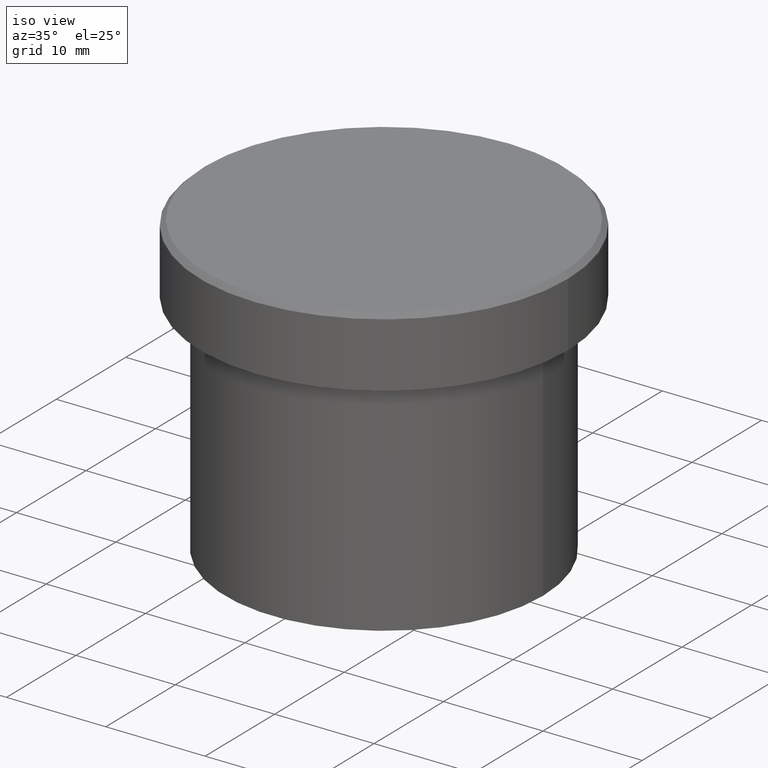
[diagram: clean part render]
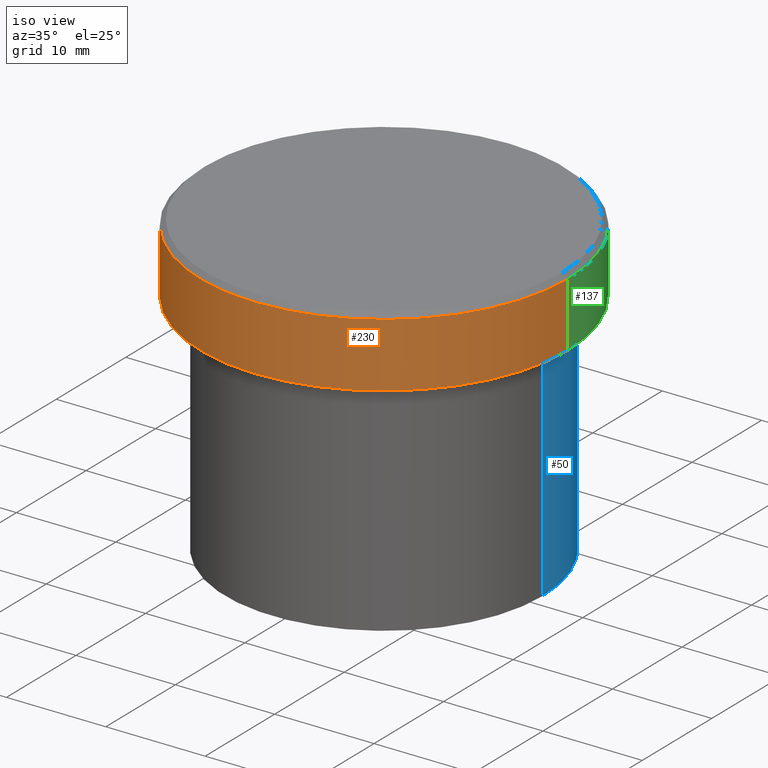
[diagram: same view with three faces highlighted in distinct colors, each labeled with its STEP entity id]
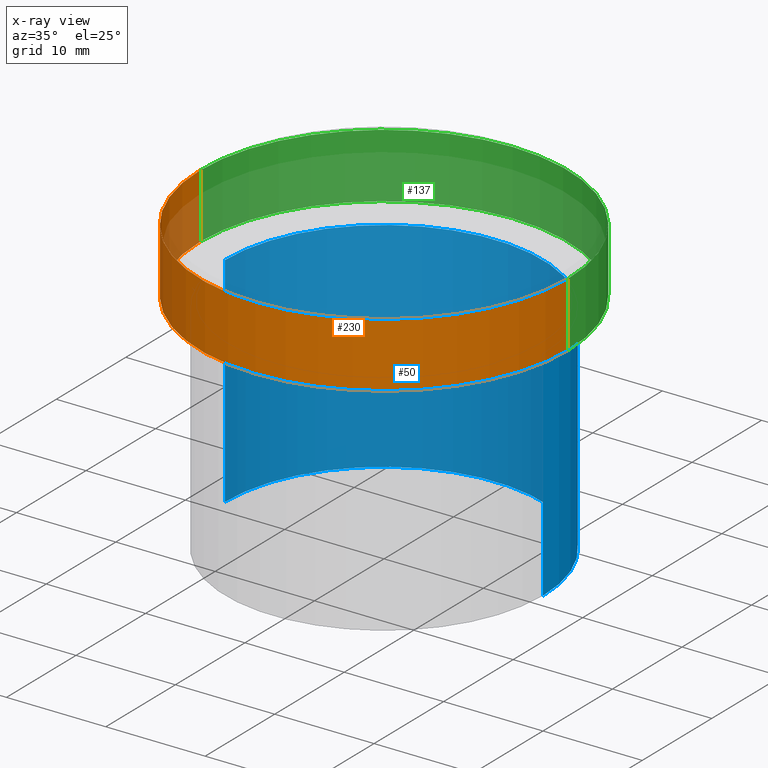
[diagram: x-ray of the same camera — body ghosted, the three highlighted faces saturated]
A machine part, iso view with three faces highlighted in distinct colors.
The next image is the same camera in x-ray (body ghosted, the three faces saturated) — at least one of them is partly hidden behind the body in this view.
Their STEP definitions:

[orange] entity #230 — the highlighted cylindrical surface (partial cylindrical patch) has radius 18.5 mm, axis along (-0, -0, 1).
#14 = DIRECTION ( 'NONE',  ( 0.000000000000000000, 0.000000000000000000, -1.000000000000000000 ) ) ;
#29 = CYLINDRICAL_SURFACE ( 'NONE', #398, 18.50000000000000000 ) ;
#36 = DIRECTION ( 'NONE',  ( -0.000000000000000000, -0.000000000000000000, 1.000000000000000000 ) ) ;
#42 = CARTESIAN_POINT ( 'NONE',  ( -18.50000000000000000, 2.265596578422603396E-15, 0.000000000000000000 ) ) ;
#44 = CARTESIAN_POINT ( 'NONE',  ( 18.50000000000000000, 0.000000000000000000, -6.999999999999999112 ) ) ;
#48 = ORIENTED_EDGE ( 'NONE', *, *, #146, .F. ) ;
#69 = CARTESIAN_POINT ( 'NONE',  ( 0.000000000000000000, 0.000000000000000000, -6.999999999999999112 ) ) ;
#75 = VECTOR ( 'NONE', #235, 1000.000000000000000 ) ;
#91 = VERTEX_POINT ( 'NONE', #112 ) ;
#107 = ORIENTED_EDGE ( 'NONE', *, *, #298, .T. ) ;
#112 = CARTESIAN_POINT ( 'NONE',  ( 18.50000000000000000, 0.000000000000000000, -0.5000000000000004441 ) ) ;
#114 = VERTEX_POINT ( 'NONE', #44 ) ;
#118 = CIRCLE ( 'NONE', #348, 18.50000000000000000 ) ;
#123 = ORIENTED_EDGE ( 'NONE', *, *, #342, .T. ) ;
#141 = VECTOR ( 'NONE', #367, 1000.000000000000000 ) ;
#144 = ORIENTED_EDGE ( 'NONE', *, *, #147, .T. ) ;
#146 = EDGE_CURVE ( 'NONE', #345, #409, #250, .T. ) ;
#147 = EDGE_CURVE ( 'NONE', #91, #409, #118, .T. ) ;
#209 = CARTESIAN_POINT ( 'NONE',  ( -18.50000000000000000, 2.265596578422603396E-15, -0.5000000000000004441 ) ) ;
#228 = EDGE_LOOP ( 'NONE', ( #48, #107, #123, #144 ) ) ;
#230 = ADVANCED_FACE ( 'NONE', ( #295 ), #29, .T. ) ;
#235 = DIRECTION ( 'NONE',  ( -0.000000000000000000, -0.000000000000000000, 1.000000000000000000 ) ) ;
#238 = DIRECTION ( 'NONE',  ( 1.000000000000000000, 0.000000000000000000, 0.000000000000000000 ) ) ;
#247 = CARTESIAN_POINT ( 'NONE',  ( 18.50000000000000000, 0.000000000000000000, 0.000000000000000000 ) ) ;
#250 = LINE ( 'NONE', #42, #141 ) ;
#293 = AXIS2_PLACEMENT_3D ( 'NONE', #69, #36, #303 ) ;
#295 = FACE_OUTER_BOUND ( 'NONE', #228, .T. ) ;
#297 = DIRECTION ( 'NONE',  ( -0.000000000000000000, -0.000000000000000000, 1.000000000000000000 ) ) ;
#298 = EDGE_CURVE ( 'NONE', #345, #114, #312, .T. ) ;
#303 = DIRECTION ( 'NONE',  ( 1.000000000000000000, 0.000000000000000000, 0.000000000000000000 ) ) ;
#307 = CARTESIAN_POINT ( 'NONE',  ( -18.50000000000000000, 2.265596578422603396E-15, -6.999999999999999112 ) ) ;
#312 = CIRCLE ( 'NONE', #293, 18.50000000000000000 ) ;
#327 = LINE ( 'NONE', #247, #75 ) ;
#334 = CARTESIAN_POINT ( 'NONE',  ( 0.000000000000000000, 0.000000000000000000, -0.5000000000000004441 ) ) ;
#342 = EDGE_CURVE ( 'NONE', #114, #91, #327, .T. ) ;
#345 = VERTEX_POINT ( 'NONE', #307 ) ;
#348 = AXIS2_PLACEMENT_3D ( 'NONE', #334, #14, #350 ) ;
#350 = DIRECTION ( 'NONE',  ( 1.000000000000000000, 0.000000000000000000, 0.000000000000000000 ) ) ;
#359 = CARTESIAN_POINT ( 'NONE',  ( 0.000000000000000000, 0.000000000000000000, 0.000000000000000000 ) ) ;
#367 = DIRECTION ( 'NONE',  ( -0.000000000000000000, -0.000000000000000000, 1.000000000000000000 ) ) ;
#398 = AXIS2_PLACEMENT_3D ( 'NONE', #359, #297, #238 ) ;
#409 = VERTEX_POINT ( 'NONE', #209 ) ;

[blue] entity #50 — the highlighted cylindrical surface (partial cylindrical patch) has radius 16 mm, axis along (-0, -0, 1).
#9 = CARTESIAN_POINT ( 'NONE',  ( 0.000000000000000000, 0.000000000000000000, -30.00000000000000000 ) ) ;
#13 = DIRECTION ( 'NONE',  ( 1.000000000000000000, 0.000000000000000000, 0.000000000000000000 ) ) ;
#26 = EDGE_CURVE ( 'NONE', #192, #341, #82, .T. ) ;
#50 = ADVANCED_FACE ( 'NONE', ( #284 ), #219, .T. ) ;
#56 = VECTOR ( 'NONE', #154, 1000.000000000000000 ) ;
#70 = LINE ( 'NONE', #72, #319 ) ;
#72 = CARTESIAN_POINT ( 'NONE',  ( 16.00000000000000000, 0.000000000000000000, 0.000000000000000000 ) ) ;
#78 = EDGE_CURVE ( 'NONE', #266, #192, #244, .T. ) ;
#82 = LINE ( 'NONE', #369, #56 ) ;
#85 = DIRECTION ( 'NONE',  ( 1.000000000000000000, 0.000000000000000000, 0.000000000000000000 ) ) ;
#111 = DIRECTION ( 'NONE',  ( -0.000000000000000000, -0.000000000000000000, 1.000000000000000000 ) ) ;
#125 = AXIS2_PLACEMENT_3D ( 'NONE', #259, #339, #85 ) ;
#138 = CARTESIAN_POINT ( 'NONE',  ( 0.000000000000000000, 0.000000000000000000, -8.000000000000000000 ) ) ;
#145 = EDGE_CURVE ( 'NONE', #266, #292, #70, .T. ) ;
#148 = ORIENTED_EDGE ( 'NONE', *, *, #26, .T. ) ;
#154 = DIRECTION ( 'NONE',  ( -0.000000000000000000, -0.000000000000000000, 1.000000000000000000 ) ) ;
#183 = EDGE_LOOP ( 'NONE', ( #346, #148, #376, #222 ) ) ;
#192 = VERTEX_POINT ( 'NONE', #305 ) ;
#219 = CYLINDRICAL_SURFACE ( 'NONE', #125, 16.00000000000000000 ) ;
#222 = ORIENTED_EDGE ( 'NONE', *, *, #145, .F. ) ;
#242 = CIRCLE ( 'NONE', #252, 16.00000000000000000 ) ;
#244 = CIRCLE ( 'NONE', #258, 16.00000000000000000 ) ;
#249 = DIRECTION ( 'NONE',  ( -0.000000000000000000, -0.000000000000000000, 1.000000000000000000 ) ) ;
#252 = AXIS2_PLACEMENT_3D ( 'NONE', #138, #249, #308 ) ;
#258 = AXIS2_PLACEMENT_3D ( 'NONE', #9, #356, #13 ) ;
#259 = CARTESIAN_POINT ( 'NONE',  ( 0.000000000000000000, 0.000000000000000000, 0.000000000000000000 ) ) ;
#266 = VERTEX_POINT ( 'NONE', #275 ) ;
#275 = CARTESIAN_POINT ( 'NONE',  ( 16.00000000000000000, 0.000000000000000000, -30.00000000000000000 ) ) ;
#284 = FACE_OUTER_BOUND ( 'NONE', #183, .T. ) ;
#292 = VERTEX_POINT ( 'NONE', #358 ) ;
#305 = CARTESIAN_POINT ( 'NONE',  ( -16.00000000000000000, 1.959434878635765131E-15, -30.00000000000000000 ) ) ;
#308 = DIRECTION ( 'NONE',  ( 1.000000000000000000, 0.000000000000000000, 0.000000000000000000 ) ) ;
#319 = VECTOR ( 'NONE', #111, 1000.000000000000000 ) ;
#339 = DIRECTION ( 'NONE',  ( -0.000000000000000000, -0.000000000000000000, 1.000000000000000000 ) ) ;
#341 = VERTEX_POINT ( 'NONE', #389 ) ;
#346 = ORIENTED_EDGE ( 'NONE', *, *, #78, .T. ) ;
#347 = EDGE_CURVE ( 'NONE', #292, #341, #242, .T. ) ;
#356 = DIRECTION ( 'NONE',  ( -0.000000000000000000, -0.000000000000000000, 1.000000000000000000 ) ) ;
#358 = CARTESIAN_POINT ( 'NONE',  ( 16.00000000000000000, 0.000000000000000000, -8.000000000000000000 ) ) ;
#369 = CARTESIAN_POINT ( 'NONE',  ( -16.00000000000000000, 1.959434878635765131E-15, 0.000000000000000000 ) ) ;
#376 = ORIENTED_EDGE ( 'NONE', *, *, #347, .F. ) ;
#389 = CARTESIAN_POINT ( 'NONE',  ( -16.00000000000000000, 1.959434878635765131E-15, -8.000000000000000000 ) ) ;

[green] entity #137 — the highlighted cylindrical surface (partial cylindrical patch) has radius 18.5 mm, axis along (-0, -0, 1).
#5 = AXIS2_PLACEMENT_3D ( 'NONE', #55, #352, #62 ) ;
#15 = FACE_OUTER_BOUND ( 'NONE', #109, .T. ) ;
#16 = CIRCLE ( 'NONE', #5, 18.50000000000000000 ) ;
#38 = CARTESIAN_POINT ( 'NONE',  ( 0.000000000000000000, 0.000000000000000000, 0.000000000000000000 ) ) ;
#42 = CARTESIAN_POINT ( 'NONE',  ( -18.50000000000000000, 2.265596578422603396E-15, 0.000000000000000000 ) ) ;
#44 = CARTESIAN_POINT ( 'NONE',  ( 18.50000000000000000, 0.000000000000000000, -6.999999999999999112 ) ) ;
#52 = ORIENTED_EDGE ( 'NONE', *, *, #146, .T. ) ;
#55 = CARTESIAN_POINT ( 'NONE',  ( 0.000000000000000000, 0.000000000000000000, -0.5000000000000004441 ) ) ;
#62 = DIRECTION ( 'NONE',  ( 1.000000000000000000, 0.000000000000000000, 0.000000000000000000 ) ) ;
#75 = VECTOR ( 'NONE', #235, 1000.000000000000000 ) ;
#77 = ORIENTED_EDGE ( 'NONE', *, *, #342, .F. ) ;
#91 = VERTEX_POINT ( 'NONE', #112 ) ;
#103 = CARTESIAN_POINT ( 'NONE',  ( 0.000000000000000000, 0.000000000000000000, -6.999999999999999112 ) ) ;
#109 = EDGE_LOOP ( 'NONE', ( #127, #52, #253, #77 ) ) ;
#112 = CARTESIAN_POINT ( 'NONE',  ( 18.50000000000000000, 0.000000000000000000, -0.5000000000000004441 ) ) ;
#114 = VERTEX_POINT ( 'NONE', #44 ) ;
#119 = AXIS2_PLACEMENT_3D ( 'NONE', #103, #383, #129 ) ;
#127 = ORIENTED_EDGE ( 'NONE', *, *, #201, .T. ) ;
#129 = DIRECTION ( 'NONE',  ( 1.000000000000000000, 0.000000000000000000, 0.000000000000000000 ) ) ;
#137 = ADVANCED_FACE ( 'NONE', ( #15 ), #329, .T. ) ;
#141 = VECTOR ( 'NONE', #367, 1000.000000000000000 ) ;
#146 = EDGE_CURVE ( 'NONE', #345, #409, #250, .T. ) ;
#150 = CIRCLE ( 'NONE', #119, 18.50000000000000000 ) ;
#185 = EDGE_CURVE ( 'NONE', #409, #91, #16, .T. ) ;
#201 = EDGE_CURVE ( 'NONE', #114, #345, #150, .T. ) ;
#209 = CARTESIAN_POINT ( 'NONE',  ( -18.50000000000000000, 2.265596578422603396E-15, -0.5000000000000004441 ) ) ;
#235 = DIRECTION ( 'NONE',  ( -0.000000000000000000, -0.000000000000000000, 1.000000000000000000 ) ) ;
#247 = CARTESIAN_POINT ( 'NONE',  ( 18.50000000000000000, 0.000000000000000000, 0.000000000000000000 ) ) ;
#250 = LINE ( 'NONE', #42, #141 ) ;
#253 = ORIENTED_EDGE ( 'NONE', *, *, #185, .T. ) ;
#286 = AXIS2_PLACEMENT_3D ( 'NONE', #38, #309, #363 ) ;
#307 = CARTESIAN_POINT ( 'NONE',  ( -18.50000000000000000, 2.265596578422603396E-15, -6.999999999999999112 ) ) ;
#309 = DIRECTION ( 'NONE',  ( -0.000000000000000000, -0.000000000000000000, 1.000000000000000000 ) ) ;
#327 = LINE ( 'NONE', #247, #75 ) ;
#329 = CYLINDRICAL_SURFACE ( 'NONE', #286, 18.50000000000000000 ) ;
#342 = EDGE_CURVE ( 'NONE', #114, #91, #327, .T. ) ;
#345 = VERTEX_POINT ( 'NONE', #307 ) ;
#352 = DIRECTION ( 'NONE',  ( 0.000000000000000000, 0.000000000000000000, -1.000000000000000000 ) ) ;
#363 = DIRECTION ( 'NONE',  ( 1.000000000000000000, 0.000000000000000000, 0.000000000000000000 ) ) ;
#367 = DIRECTION ( 'NONE',  ( -0.000000000000000000, -0.000000000000000000, 1.000000000000000000 ) ) ;
#383 = DIRECTION ( 'NONE',  ( -0.000000000000000000, -0.000000000000000000, 1.000000000000000000 ) ) ;
#409 = VERTEX_POINT ( 'NONE', #209 ) ;